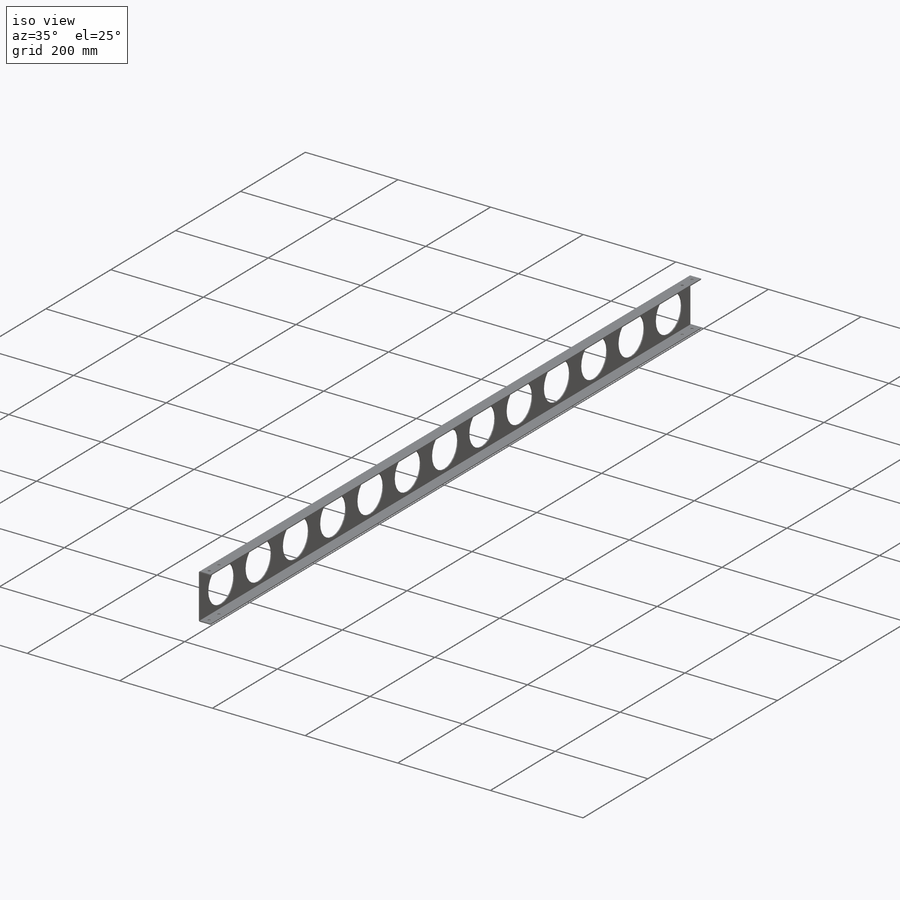
[diagram: iso view]
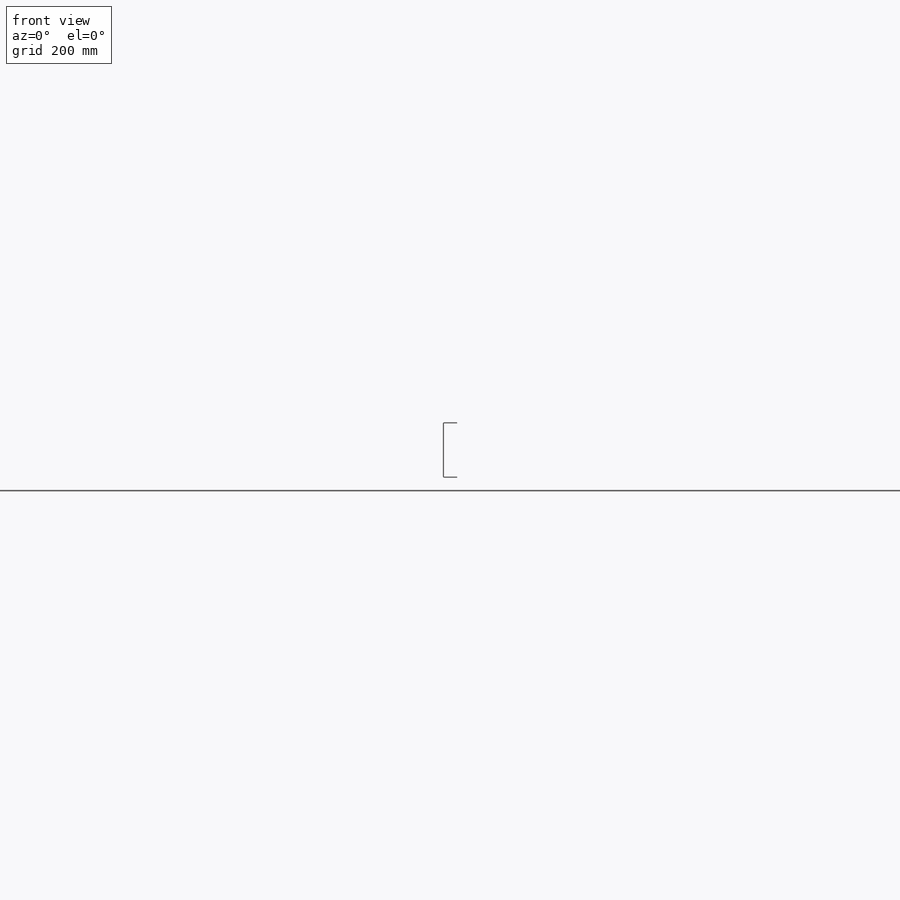
[diagram: front view]
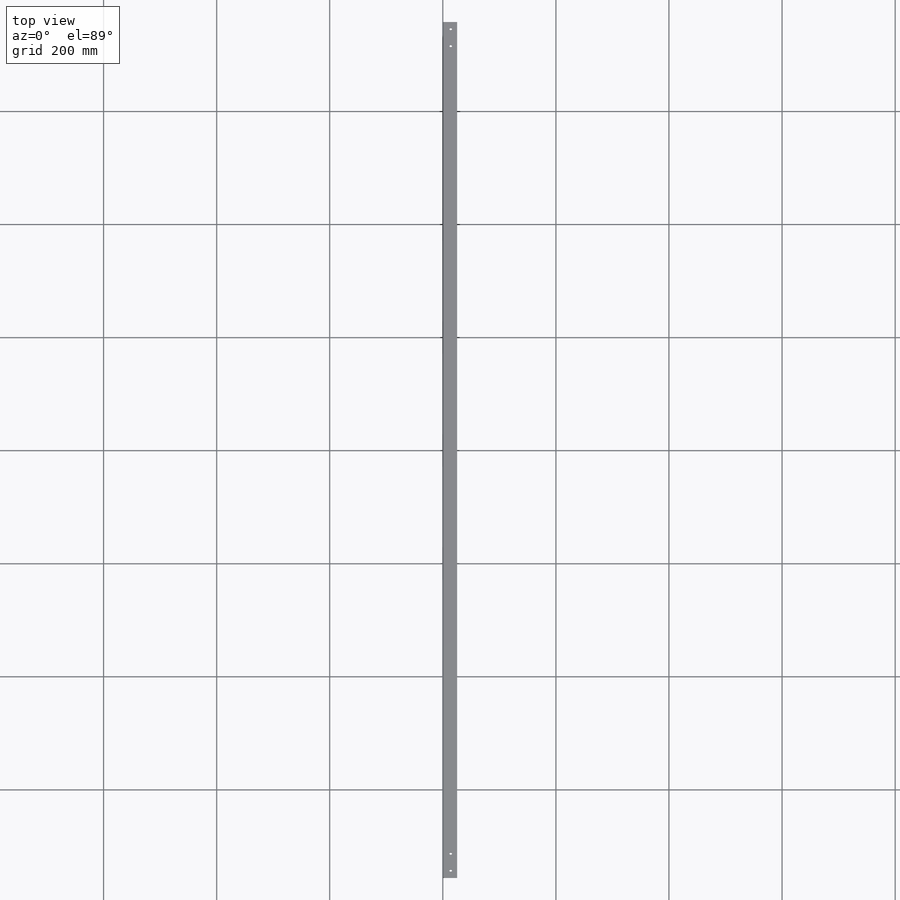
[diagram: top view]
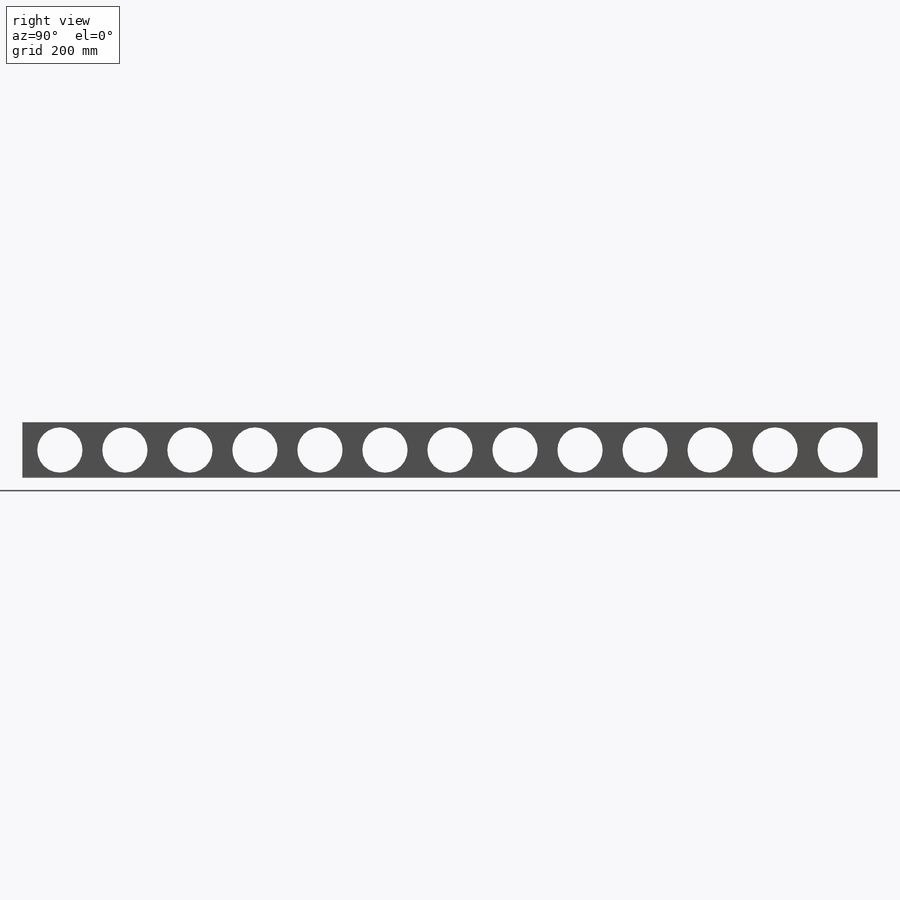
[diagram: right view]
SOLIDWORKS PART (.sldprt)
format: sldprt  version: not decoded by parser v0  size: 281,600 bytes
history: native  units: mm
features: sketch x5, pattern_linear x2, material x1, cut_extrude x1, hole x1, mirror x1 (+11 scaffold rows collapsed)
feature tree (22):
  scaffold x11  (default folders/planes/origin — collapsed)
  material  "6061-T6 (SS)"
  sketch  "Sketch1"  dims[c1.D3=2.54mm c1.D1=152.4mm c1.D2=25.4mm c2.D1=98.0mm c2.D2=25.4mm c3.D1=~1512.619246mm c3.D5=2.0mm c3.D6=1.0mm c3.D7=5.0mm]
  sketch  "Sketch2"  dims[D1=80.0mm]
  cut_extrude  "Extrude1"  [1 undecoded]
  pattern_linear  "LPattern1"  Count1=7 Count2=1 Spacing1=115mm Spacing2=165.1mm
  pattern_linear  "LPattern2"  Count1=7 Count2=1 Spacing1=115mm Spacing2=2.54mm
  sketch  "Sketch3"  dims[D1=12.0mm D2=30.0mm]
  hole  "#10 Clearance Hole1"  Diameter=4.9784mm Depth=98mm
  sketch  "Sketch5"
  sketch  "Sketch4"  dims[hole-wizard template sketch: 60 standard entries collapsed; hole parameters kept: c18.Thru Hole Depth=98.0mm]
  mirror  "Mirror1"
decode coverage: 7 of 10 modeling features carry decoded parameters
note: ~ marks probable driven/reference dimensions
note: 1 parameter value undecoded
note: suppression state not decoded; provenance and decode notes live in map.json
